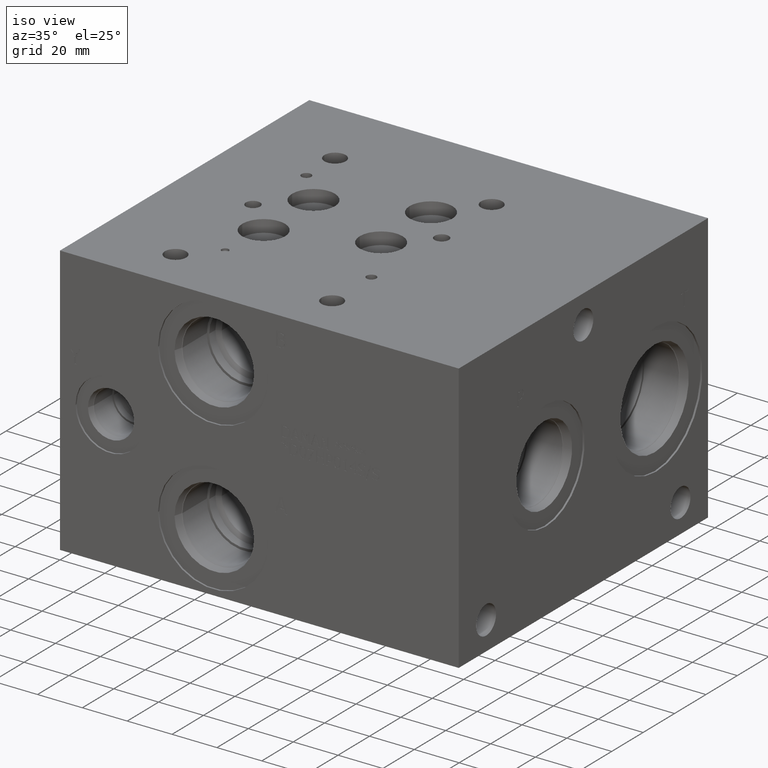
[diagram: clean part render]
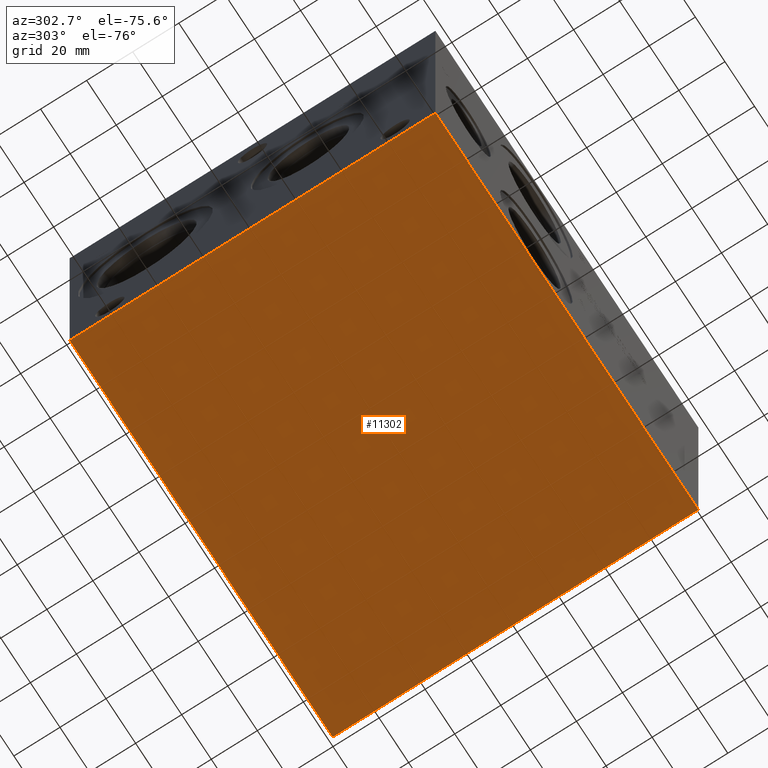
[diagram: tour spotlight — one face highlighted and labeled with its STEP entity id]
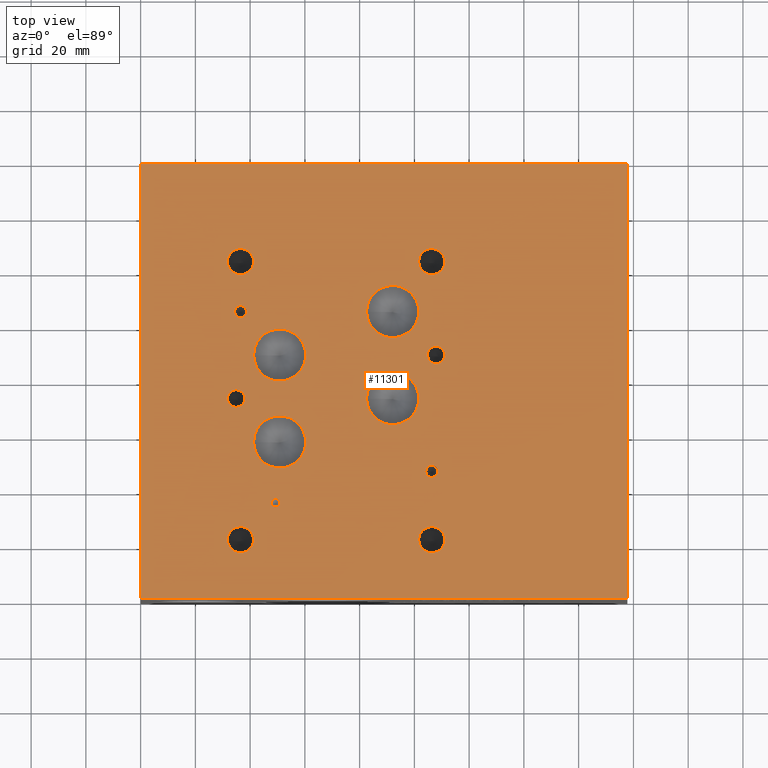
[diagram: tour spotlight — one face highlighted and labeled with its STEP entity id]
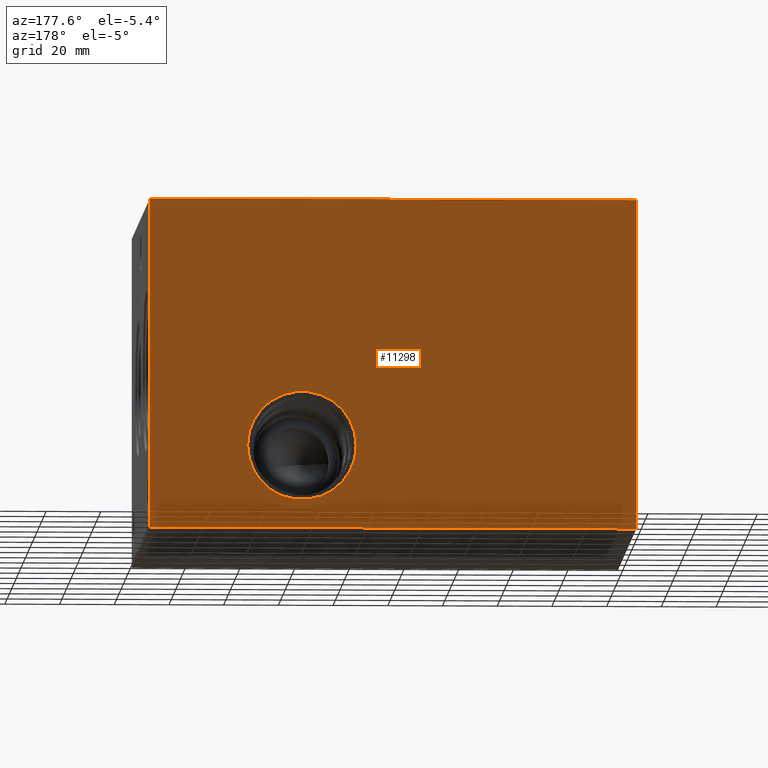
[diagram: tour spotlight — one face highlighted and labeled with its STEP entity id]
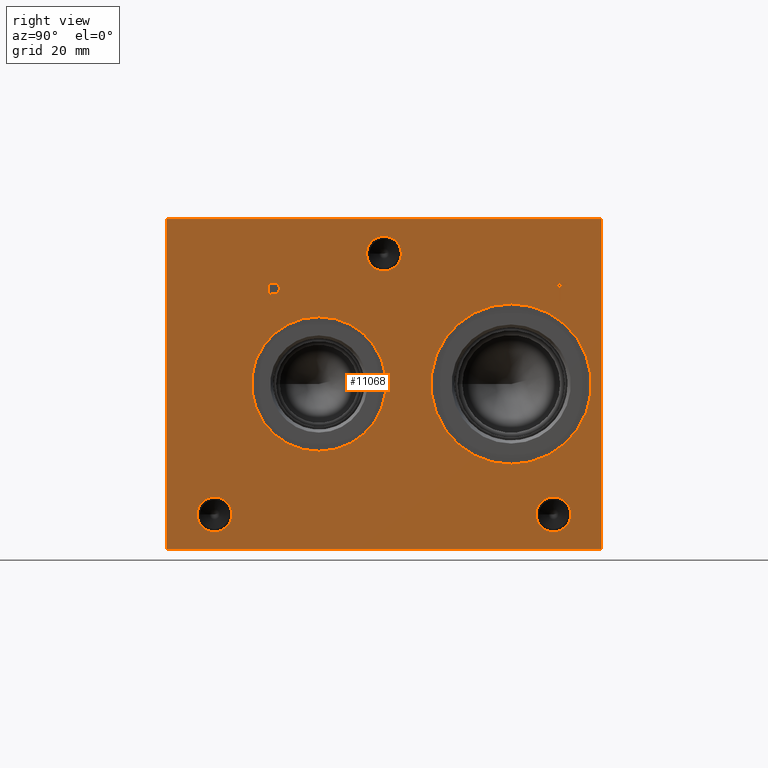
[diagram: tour spotlight — one face highlighted and labeled with its STEP entity id]
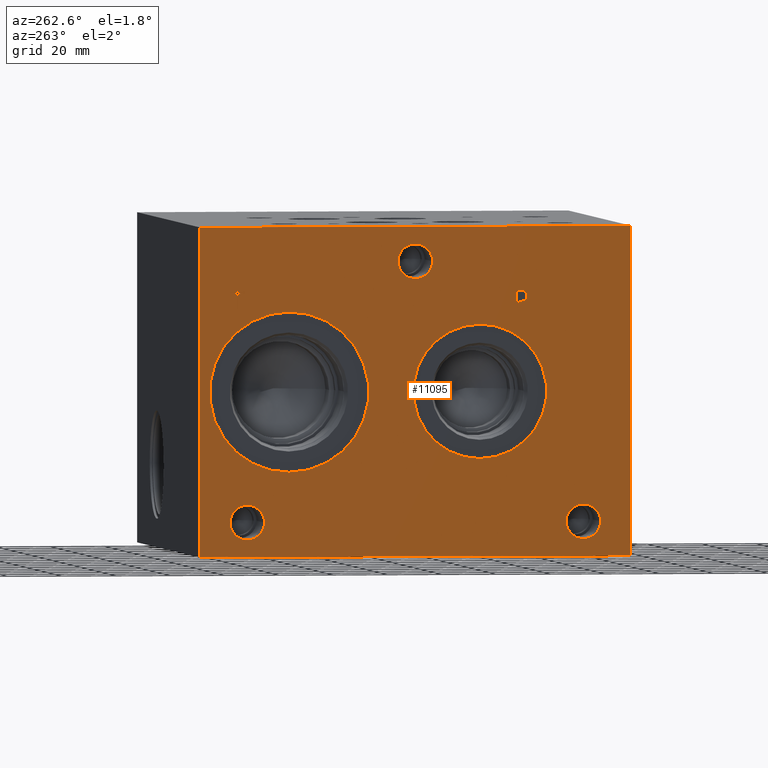
[diagram: tour spotlight — one face highlighted and labeled with its STEP entity id]
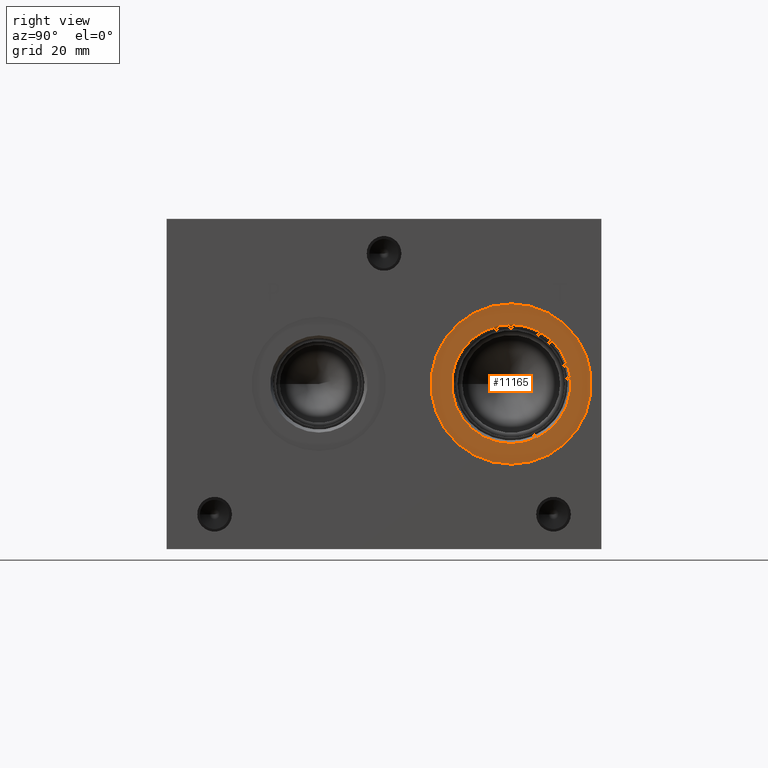
[diagram: tour spotlight — one face highlighted and labeled with its STEP entity id]
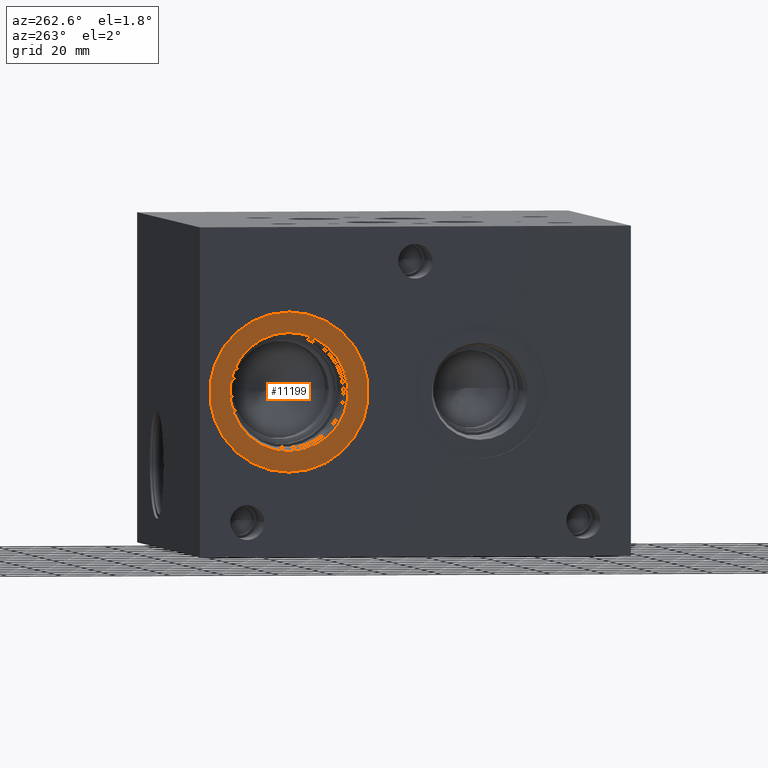
[diagram: tour spotlight — one face highlighted and labeled with its STEP entity id]
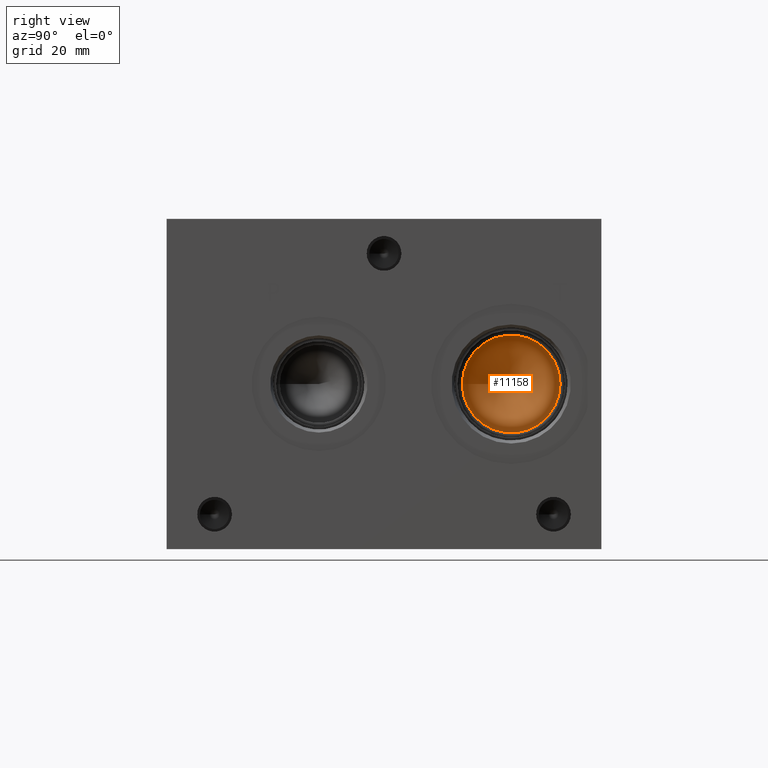
[diagram: tour spotlight — one face highlighted and labeled with its STEP entity id]
A machine part: a face-by-face anatomy tour. The part has 581 B-rep faces; the first image is the clean iso view, then the 8 largest visible faces are spotlighted one at a time (largest first), each with its STEP entity span.

Face 1 — auxiliary view, entity #11302. In plain terms, the highlighted planar face has unit normal (0, 0, 1).
Definition (entity closure, byte-faithful):
#1419=FACE_OUTER_BOUND('',#2097,.T.);
#2097=EDGE_LOOP('',(#9958,#9959,#9960,#9961));
#2432=LINE('',#16534,#3493);
#2890=LINE('',#17782,#3951);
#2949=LINE('',#18058,#4010);
#3157=LINE('',#19258,#4218);
#3493=VECTOR('',#12596,10.);
#3951=VECTOR('',#13382,10.);
#4010=VECTOR('',#13499,10.);
#4218=VECTOR('',#14599,10.);
#4540=VERTEX_POINT('',#16532);
#4541=VERTEX_POINT('',#16533);
#4887=VERTEX_POINT('',#17781);
#4947=VERTEX_POINT('',#18057);
#5774=EDGE_CURVE('',#4540,#4541,#2432,.T.);
#6276=EDGE_CURVE('',#4541,#4887,#2890,.T.);
#6361=EDGE_CURVE('',#4947,#4540,#2949,.T.);
#6848=EDGE_CURVE('',#4887,#4947,#3157,.T.);
#9958=ORIENTED_EDGE('',*,*,#5774,.F.);
#9959=ORIENTED_EDGE('',*,*,#6361,.F.);
#9960=ORIENTED_EDGE('',*,*,#6848,.F.);
#9961=ORIENTED_EDGE('',*,*,#6276,.F.);
#10309=PLANE('',#12059);
#11302=ADVANCED_FACE('',(#1419),#10309,.F.);
#12059=AXIS2_PLACEMENT_3D('',#19263,#14607,#14608);
#12596=DIRECTION('',(1.,0.,0.));
#13382=DIRECTION('',(0.,1.,0.));
#13499=DIRECTION('',(0.,-1.,0.));
#14599=DIRECTION('',(-1.,0.,0.));
#14607=DIRECTION('center_axis',(0.,0.,1.));
#14608=DIRECTION('ref_axis',(1.,0.,0.));
#16532=CARTESIAN_POINT('',(0.,0.,0.));
#16533=CARTESIAN_POINT('',(177.8,0.,0.));
#16534=CARTESIAN_POINT('',(0.,0.,0.));
#17781=CARTESIAN_POINT('',(177.8,158.75,0.));
#17782=CARTESIAN_POINT('',(177.8,0.,0.));
#18057=CARTESIAN_POINT('',(0.,158.75,0.));
#18058=CARTESIAN_POINT('',(0.,158.75,0.));
#19258=CARTESIAN_POINT('',(177.8,158.75,0.));
#19263=CARTESIAN_POINT('Origin',(88.9,79.375,0.));

Face 2 — top view, entity #11301. In plain terms, the highlighted planar face has unit normal (0, 0, 1).
Definition (entity closure, byte-faithful):
#341=CIRCLE('',#11950,1.5875);
#342=CIRCLE('',#11951,1.5875);
#345=CIRCLE('',#11956,9.525);
#346=CIRCLE('',#11957,9.525);
#349=CIRCLE('',#11962,9.525);
#350=CIRCLE('',#11963,9.525);
#353=CIRCLE('',#11968,9.525);
#354=CIRCLE('',#11969,9.525);
#357=CIRCLE('',#11974,9.525);
#358=CIRCLE('',#11975,9.525);
#361=CIRCLE('',#11980,2.1844);
#362=CIRCLE('',#11981,2.1844);
#365=CIRCLE('',#11986,2.1844);
#366=CIRCLE('',#11987,2.1844);
#372=CIRCLE('',#11996,3.175);
#373=CIRCLE('',#11997,3.175);
#379=CIRCLE('',#12007,3.175);
#380=CIRCLE('',#12008,3.175);
#386=CIRCLE('',#12018,4.7625);
#387=CIRCLE('',#12019,4.7625);
#393=CIRCLE('',#12029,4.7625);
#394=CIRCLE('',#12030,4.7625);
#400=CIRCLE('',#12040,4.7625);
#401=CIRCLE('',#12041,4.7625);
#407=CIRCLE('',#12051,4.7625);
#408=CIRCLE('',#12052,4.7625);
#493=FACE_BOUND('',#2084,.T.);
#494=FACE_BOUND('',#2085,.T.);
#495=FACE_BOUND('',#2086,.T.);
#496=FACE_BOUND('',#2087,.T.);
#497=FACE_BOUND('',#2088,.T.);
#498=FACE_BOUND('',#2089,.T.);
#499=FACE_BOUND('',#2090,.T.);
#500=FACE_BOUND('',#2091,.T.);
#501=FACE_BOUND('',#2092,.T.);
#502=FACE_BOUND('',#2093,.T.);
#503=FACE_BOUND('',#2094,.T.);
#504=FACE_BOUND('',#2095,.T.);
#505=FACE_BOUND('',#2096,.T.);
#1418=FACE_OUTER_BOUND('',#2083,.T.);
#2083=EDGE_LOOP('',(#9928,#9929,#9930,#9931));
#2084=EDGE_LOOP('',(#9932,#9933));
#2085=EDGE_LOOP('',(#9934,#9935));
#2086=EDGE_LOOP('',(#9936,#9937));
#2087=EDGE_LOOP('',(#9938,#9939));
#2088=EDGE_LOOP('',(#9940,#9941));
#2089=EDGE_LOOP('',(#9942,#9943));
#2090=EDGE_LOOP('',(#9944,#9945));
#2091=EDGE_LOOP('',(#9946,#9947));
#2092=EDGE_LOOP('',(#9948,#9949));
#2093=EDGE_LOOP('',(#9950,#9951));
#2094=EDGE_LOOP('',(#9952,#9953));
#2095=EDGE_LOOP('',(#9954,#9955));
#2096=EDGE_LOOP('',(#9956,#9957));
#2434=LINE('',#16538,#3495);
#2892=LINE('',#17785,#3953);
#2950=LINE('',#18060,#4011);
#3158=LINE('',#19259,#4219);
#3495=VECTOR('',#12598,10.);
#3953=VECTOR('',#13384,10.);
#4011=VECTOR('',#13500,10.);
#4219=VECTOR('',#14600,10.);
#4542=VERTEX_POINT('',#16535);
#4543=VERTEX_POINT('',#16537);
#4888=VERTEX_POINT('',#17783);
#4948=VERTEX_POINT('',#18059);
#5214=VERTEX_POINT('',#19041);
#5215=VERTEX_POINT('',#19042);
#5219=VERTEX_POINT('',#19054);
#5220=VERTEX_POINT('',#19055);
#5224=VERTEX_POINT('',#19067);
#5225=VERTEX_POINT('',#19068);
#5229=VERTEX_POINT('',#19080);
#5230=VERTEX_POINT('',#19081);
#5234=VERTEX_POINT('',#19093);
#5235=VERTEX_POINT('',#19094);
#5239=VERTEX_POINT('',#19106);
#5240=VERTEX_POINT('',#19107);
#5244=VERTEX_POINT('',#19119);
#5245=VERTEX_POINT('',#19120);
#5252=VERTEX_POINT('',#19139);
#5253=VERTEX_POINT('',#19140);
#5260=VERTEX_POINT('',#19161);
#5261=VERTEX_POINT('',#19162);
#5268=VERTEX_POINT('',#19183);
#5269=VERTEX_POINT('',#19184);
#5276=VERTEX_POINT('',#19205);
#5277=VERTEX_POINT('',#19206);
#5284=VERTEX_POINT('',#19227);
#5285=VERTEX_POINT('',#19228);
#5292=VERTEX_POINT('',#19249);
#5293=VERTEX_POINT('',#19250);
#5776=EDGE_CURVE('',#4543,#4542,#2434,.T.);
#6278=EDGE_CURVE('',#4542,#4888,#2892,.T.);
#6362=EDGE_CURVE('',#4948,#4543,#2950,.T.);
#6749=EDGE_CURVE('',#5214,#5215,#341,.T.);
#6750=EDGE_CURVE('',#5215,#5214,#342,.T.);
#6755=EDGE_CURVE('',#5219,#5220,#345,.T.);
#6756=EDGE_CURVE('',#5220,#5219,#346,.T.);
#6761=EDGE_CURVE('',#5224,#5225,#349,.T.);
#6762=EDGE_CURVE('',#5225,#5224,#350,.T.);
#6767=EDGE_CURVE('',#5229,#5230,#353,.T.);
#6768=EDGE_CURVE('',#5230,#5229,#354,.T.);
#6773=EDGE_CURVE('',#5234,#5235,#357,.T.);
#6774=EDGE_CURVE('',#5235,#5234,#358,.T.);
#6779=EDGE_CURVE('',#5239,#5240,#361,.T.);
#6780=EDGE_CURVE('',#5240,#5239,#362,.T.);
#6785=EDGE_CURVE('',#5244,#5245,#365,.T.);
#6786=EDGE_CURVE('',#5245,#5244,#366,.T.);
#6794=EDGE_CURVE('',#5252,#5253,#372,.T.);
#6795=EDGE_CURVE('',#5253,#5252,#373,.T.);
#6804=EDGE_CURVE('',#5260,#5261,#379,.T.);
#6805=EDGE_CURVE('',#5261,#5260,#380,.T.);
#6814=EDGE_CURVE('',#5268,#5269,#386,.T.);
#6815=EDGE_CURVE('',#5269,#5268,#387,.T.);
#6824=EDGE_CURVE('',#5276,#5277,#393,.T.);
#6825=EDGE_CURVE('',#5277,#5276,#394,.T.);
#6834=EDGE_CURVE('',#5284,#5285,#400,.T.);
#6835=EDGE_CURVE('',#5285,#5284,#401,.T.);
#6844=EDGE_CURVE('',#5292,#5293,#407,.T.);
#6845=EDGE_CURVE('',#5293,#5292,#408,.T.);
#6849=EDGE_CURVE('',#4888,#4948,#3158,.T.);
#9928=ORIENTED_EDGE('',*,*,#5776,.T.);
#9929=ORIENTED_EDGE('',*,*,#6278,.T.);
#9930=ORIENTED_EDGE('',*,*,#6849,.T.);
#9931=ORIENTED_EDGE('',*,*,#6362,.T.);
#9932=ORIENTED_EDGE('',*,*,#6749,.T.);
#9933=ORIENTED_EDGE('',*,*,#6750,.T.);
#9934=ORIENTED_EDGE('',*,*,#6755,.T.);
#9935=ORIENTED_EDGE('',*,*,#6756,.T.);
#9936=ORIENTED_EDGE('',*,*,#6761,.T.);
#9937=ORIENTED_EDGE('',*,*,#6762,.T.);
#9938=ORIENTED_EDGE('',*,*,#6767,.T.);
#9939=ORIENTED_EDGE('',*,*,#6768,.T.);
#9940=ORIENTED_EDGE('',*,*,#6773,.T.);
#9941=ORIENTED_EDGE('',*,*,#6774,.T.);
#9942=ORIENTED_EDGE('',*,*,#6779,.T.);
#9943=ORIENTED_EDGE('',*,*,#6780,.T.);
#9944=ORIENTED_EDGE('',*,*,#6785,.T.);
#9945=ORIENTED_EDGE('',*,*,#6786,.T.);
#9946=ORIENTED_EDGE('',*,*,#6794,.T.);
#9947=ORIENTED_EDGE('',*,*,#6795,.T.);
#9948=ORIENTED_EDGE('',*,*,#6804,.T.);
#9949=ORIENTED_EDGE('',*,*,#6805,.T.);
#9950=ORIENTED_EDGE('',*,*,#6814,.T.);
#9951=ORIENTED_EDGE('',*,*,#6815,.T.);
#9952=ORIENTED_EDGE('',*,*,#6824,.T.);
#9953=ORIENTED_EDGE('',*,*,#6825,.T.);
#9954=ORIENTED_EDGE('',*,*,#6834,.T.);
#9955=ORIENTED_EDGE('',*,*,#6835,.T.);
#9956=ORIENTED_EDGE('',*,*,#6844,.T.);
#9957=ORIENTED_EDGE('',*,*,#6845,.T.);
#10308=PLANE('',#12058);
#11301=ADVANCED_FACE('',(#1418,#493,#494,#495,#496,#497,#498,#499,#500,
#501,#502,#503,#504,#505),#10308,.T.);
#11950=AXIS2_PLACEMENT_3D('',#19043,#14356,#14357);
#11951=AXIS2_PLACEMENT_3D('',#19044,#14358,#14359);
#11956=AXIS2_PLACEMENT_3D('',#19056,#14370,#14371);
#11957=AXIS2_PLACEMENT_3D('',#19057,#14372,#14373);
#11962=AXIS2_PLACEMENT_3D('',#19069,#14384,#14385);
#11963=AXIS2_PLACEMENT_3D('',#19070,#14386,#14387);
#11968=AXIS2_PLACEMENT_3D('',#19082,#14398,#14399);
#11969=AXIS2_PLACEMENT_3D('',#19083,#14400,#14401);
#11974=AXIS2_PLACEMENT_3D('',#19095,#14412,#14413);
#11975=AXIS2_PLACEMENT_3D('',#19096,#14414,#14415);
#11980=AXIS2_PLACEMENT_3D('',#19108,#14426,#14427);
#11981=AXIS2_PLACEMENT_3D('',#19109,#14428,#14429);
#11986=AXIS2_PLACEMENT_3D('',#19121,#14440,#14441);
#11987=AXIS2_PLACEMENT_3D('',#19122,#14442,#14443);
#11996=AXIS2_PLACEMENT_3D('',#19141,#14462,#14463);
#11997=AXIS2_PLACEMENT_3D('',#19142,#14464,#14465);
#12007=AXIS2_PLACEMENT_3D('',#19163,#14487,#14488);
#12008=AXIS2_PLACEMENT_3D('',#19164,#14489,#14490);
#12018=AXIS2_PLACEMENT_3D('',#19185,#14512,#14513);
#12019=AXIS2_PLACEMENT_3D('',#19186,#14514,#14515);
#12029=AXIS2_PLACEMENT_3D('',#19207,#14537,#14538);
#12030=AXIS2_PLACEMENT_3D('',#19208,#14539,#14540);
#12040=AXIS2_PLACEMENT_3D('',#19229,#14562,#14563);
#12041=AXIS2_PLACEMENT_3D('',#19230,#14564,#14565);
#12051=AXIS2_PLACEMENT_3D('',#19251,#14587,#14588);
#12052=AXIS2_PLACEMENT_3D('',#19252,#14589,#14590);
#12058=AXIS2_PLACEMENT_3D('',#19262,#14605,#14606);
#12598=DIRECTION('',(1.,0.,0.));
#13384=DIRECTION('',(0.,1.,0.));
#13500=DIRECTION('',(0.,-1.,0.));
#14356=DIRECTION('center_axis',(0.,0.,-1.));
#14357=DIRECTION('ref_axis',(1.,0.,0.));
#14358=DIRECTION('center_axis',(0.,0.,-1.));
#14359=DIRECTION('ref_axis',(1.,0.,0.));
#14370=DIRECTION('center_axis',(0.,0.,-1.));
#14371=DIRECTION('ref_axis',(1.,0.,0.));
#14372=DIRECTION('center_axis',(0.,0.,-1.));
#14373=DIRECTION('ref_axis',(1.,0.,0.));
#14384=DIRECTION('center_axis',(0.,0.,-1.));
#14385=DIRECTION('ref_axis',(1.,0.,0.));
#14386=DIRECTION('center_axis',(0.,0.,-1.));
#14387=DIRECTION('ref_axis',(1.,0.,0.));
#14398=DIRECTION('center_axis',(0.,0.,-1.));
#14399=DIRECTION('ref_axis',(1.,0.,0.));
#14400=DIRECTION('center_axis',(0.,0.,-1.));
#14401=DIRECTION('ref_axis',(1.,0.,0.));
#14412=DIRECTION('center_axis',(0.,0.,-1.));
#14413=DIRECTION('ref_axis',(1.,0.,0.));
#14414=DIRECTION('center_axis',(0.,0.,-1.));
#14415=DIRECTION('ref_axis',(1.,0.,0.));
#14426=DIRECTION('center_axis',(0.,0.,-1.));
#14427=DIRECTION('ref_axis',(1.,0.,0.));
#14428=DIRECTION('center_axis',(0.,0.,-1.));
#14429=DIRECTION('ref_axis',(1.,0.,0.));
#14440=DIRECTION('center_axis',(0.,0.,-1.));
#14441=DIRECTION('ref_axis',(1.,0.,0.));
#14442=DIRECTION('center_axis',(0.,0.,-1.));
#14443=DIRECTION('ref_axis',(1.,0.,0.));
#14462=DIRECTION('center_axis',(0.,0.,-1.));
#14463=DIRECTION('ref_axis',(1.,0.,0.));
#14464=DIRECTION('center_axis',(0.,0.,-1.));
#14465=DIRECTION('ref_axis',(1.,0.,0.));
#14487=DIRECTION('center_axis',(0.,0.,-1.));
#14488=DIRECTION('ref_axis',(1.,0.,0.));
#14489=DIRECTION('center_axis',(0.,0.,-1.));
#14490=DIRECTION('ref_axis',(1.,0.,0.));
#14512=DIRECTION('center_axis',(0.,0.,-1.));
#14513=DIRECTION('ref_axis',(1.,0.,0.));
#14514=DIRECTION('center_axis',(0.,0.,-1.));
#14515=DIRECTION('ref_axis',(1.,0.,0.));
#14537=DIRECTION('center_axis',(0.,0.,-1.));
#14538=DIRECTION('ref_axis',(1.,0.,0.));
#14539=DIRECTION('center_axis',(0.,0.,-1.));
#14540=DIRECTION('ref_axis',(1.,0.,0.));
#14562=DIRECTION('center_axis',(0.,0.,-1.));
#14563=DIRECTION('ref_axis',(1.,0.,0.));
#14564=DIRECTION('center_axis',(0.,0.,-1.));
#14565=DIRECTION('ref_axis',(1.,0.,0.));
#14587=DIRECTION('center_axis',(0.,0.,-1.));
#14588=DIRECTION('ref_axis',(1.,0.,0.));
#14589=DIRECTION('center_axis',(0.,0.,-1.));
#14590=DIRECTION('ref_axis',(1.,0.,0.));
#14600=DIRECTION('',(-1.,0.,0.));
#14605=DIRECTION('center_axis',(0.,0.,1.));
#14606=DIRECTION('ref_axis',(1.,0.,0.));
#16535=CARTESIAN_POINT('',(177.8,0.,120.65));
#16537=CARTESIAN_POINT('',(0.,0.,120.65));
#16538=CARTESIAN_POINT('',(0.,0.,120.65));
#17783=CARTESIAN_POINT('',(177.8,158.75,120.65));
#17785=CARTESIAN_POINT('',(177.8,0.,120.65));
#18059=CARTESIAN_POINT('',(0.,158.75,120.65));
#18060=CARTESIAN_POINT('',(0.,158.75,120.65));
#19041=CARTESIAN_POINT('',(50.7873,34.925,120.65));
#19042=CARTESIAN_POINT('',(47.6123,34.925,120.65));
#19043=CARTESIAN_POINT('Origin',(49.1998,34.925,120.65));
#19044=CARTESIAN_POINT('Origin',(49.1998,34.925,120.65));
#19054=CARTESIAN_POINT('',(60.325,88.9,120.65));
#19055=CARTESIAN_POINT('',(41.275,88.9,120.65));
#19056=CARTESIAN_POINT('Origin',(50.8,88.9,120.65));
#19057=CARTESIAN_POINT('Origin',(50.8,88.9,120.65));
#19067=CARTESIAN_POINT('',(101.6,73.025,120.65));
#19068=CARTESIAN_POINT('',(82.55,73.025,120.65));
#19069=CARTESIAN_POINT('Origin',(92.075,73.025,120.65));
#19070=CARTESIAN_POINT('Origin',(92.075,73.025,120.65));
#19080=CARTESIAN_POINT('',(101.6,104.775,120.65));
#19081=CARTESIAN_POINT('',(82.55,104.775,120.65));
#19082=CARTESIAN_POINT('Origin',(92.075,104.775,120.65));
#19083=CARTESIAN_POINT('Origin',(92.075,104.775,120.65));
#19093=CARTESIAN_POINT('',(60.325,57.15,120.65));
#19094=CARTESIAN_POINT('',(41.275,57.15,120.65));
#19095=CARTESIAN_POINT('Origin',(50.8,57.15,120.65));
#19096=CARTESIAN_POINT('Origin',(50.8,57.15,120.65));
#19106=CARTESIAN_POINT('',(38.6842,104.775,120.65));
#19107=CARTESIAN_POINT('',(34.3154,104.775,120.65));
#19108=CARTESIAN_POINT('Origin',(36.4998,104.775,120.65));
#19109=CARTESIAN_POINT('Origin',(36.4998,104.775,120.65));
#19119=CARTESIAN_POINT('',(108.5342,46.4312,120.65));
#19120=CARTESIAN_POINT('',(104.1654,46.4312,120.65));
#19121=CARTESIAN_POINT('Origin',(106.3498,46.4312,120.65));
#19122=CARTESIAN_POINT('Origin',(106.3498,46.4312,120.65));
#19139=CARTESIAN_POINT('',(38.1,73.025,120.65));
#19140=CARTESIAN_POINT('',(31.75,73.025,120.65));
#19141=CARTESIAN_POINT('Origin',(34.925,73.025,120.65));
#19142=CARTESIAN_POINT('Origin',(34.925,73.025,120.65));
#19161=CARTESIAN_POINT('',(111.125,88.9,120.65));
#19162=CARTESIAN_POINT('',(104.775,88.9,120.65));
#19163=CARTESIAN_POINT('Origin',(107.95,88.9,120.65));
#19164=CARTESIAN_POINT('Origin',(107.95,88.9,120.65));
#19183=CARTESIAN_POINT('',(111.1123,21.4376,120.65));
#19184=CARTESIAN_POINT('',(101.5873,21.4376,120.65));
#19185=CARTESIAN_POINT('Origin',(106.3498,21.4376,120.65));
#19186=CARTESIAN_POINT('Origin',(106.3498,21.4376,120.65));
#19205=CARTESIAN_POINT('',(41.2623,123.0376,120.65));
#19206=CARTESIAN_POINT('',(31.7373,123.0376,120.65));
#19207=CARTESIAN_POINT('Origin',(36.4998,123.0376,120.65));
#19208=CARTESIAN_POINT('Origin',(36.4998,123.0376,120.65));
#19227=CARTESIAN_POINT('',(111.1123,123.0376,120.65));
#19228=CARTESIAN_POINT('',(101.5873,123.0376,120.65));
#19229=CARTESIAN_POINT('Origin',(106.3498,123.0376,120.65));
#19230=CARTESIAN_POINT('Origin',(106.3498,123.0376,120.65));
#19249=CARTESIAN_POINT('',(41.2623,21.4376,120.65));
#19250=CARTESIAN_POINT('',(31.7373,21.4376,120.65));
#19251=CARTESIAN_POINT('Origin',(36.4998,21.4376,120.65));
#19252=CARTESIAN_POINT('Origin',(36.4998,21.4376,120.65));
#19259=CARTESIAN_POINT('',(177.8,158.75,120.65));
#19262=CARTESIAN_POINT('Origin',(88.9,79.375,120.65));

Face 3 — auxiliary view, entity #11298. In plain terms, the highlighted planar face has unit normal (0, 1, 0).
Definition (entity closure, byte-faithful):
#162=CIRCLE('',#11657,19.8374);
#163=CIRCLE('',#11658,19.8374);
#492=FACE_BOUND('',#2080,.T.);
#1415=FACE_OUTER_BOUND('',#2079,.T.);
#2079=EDGE_LOOP('',(#9908,#9909,#9910,#9911));
#2080=EDGE_LOOP('',(#9912,#9913));
#2891=LINE('',#17784,#3952);
#2951=LINE('',#18061,#4012);
#3157=LINE('',#19258,#4218);
#3158=LINE('',#19259,#4219);
#3952=VECTOR('',#13383,10.);
#4012=VECTOR('',#13501,10.);
#4218=VECTOR('',#14599,10.);
#4219=VECTOR('',#14600,10.);
#4887=VERTEX_POINT('',#17781);
#4888=VERTEX_POINT('',#17783);
#4947=VERTEX_POINT('',#18057);
#4948=VERTEX_POINT('',#18059);
#5020=VERTEX_POINT('',#18463);
#5021=VERTEX_POINT('',#18464);
#6277=EDGE_CURVE('',#4887,#4888,#2891,.T.);
#6363=EDGE_CURVE('',#4947,#4948,#2951,.T.);
#6479=EDGE_CURVE('',#5020,#5021,#162,.T.);
#6480=EDGE_CURVE('',#5021,#5020,#163,.T.);
#6848=EDGE_CURVE('',#4887,#4947,#3157,.T.);
#6849=EDGE_CURVE('',#4888,#4948,#3158,.T.);
#9908=ORIENTED_EDGE('',*,*,#6848,.T.);
#9909=ORIENTED_EDGE('',*,*,#6363,.T.);
#9910=ORIENTED_EDGE('',*,*,#6849,.F.);
#9911=ORIENTED_EDGE('',*,*,#6277,.F.);
#9912=ORIENTED_EDGE('',*,*,#6479,.T.);
#9913=ORIENTED_EDGE('',*,*,#6480,.T.);
#10305=PLANE('',#12055);
#11298=ADVANCED_FACE('',(#1415,#492),#10305,.T.);
#11657=AXIS2_PLACEMENT_3D('',#18465,#13679,#13680);
#11658=AXIS2_PLACEMENT_3D('',#18466,#13681,#13682);
#12055=AXIS2_PLACEMENT_3D('',#19257,#14597,#14598);
#13383=DIRECTION('',(0.,0.,1.));
#13501=DIRECTION('',(0.,0.,1.));
#13679=DIRECTION('center_axis',(0.,-1.,0.));
#13680=DIRECTION('ref_axis',(1.,0.,0.));
#13681=DIRECTION('center_axis',(0.,-1.,0.));
#13682=DIRECTION('ref_axis',(1.,0.,0.));
#14597=DIRECTION('center_axis',(0.,1.,0.));
#14598=DIRECTION('ref_axis',(-1.,0.,0.));
#14599=DIRECTION('',(-1.,0.,0.));
#14600=DIRECTION('',(-1.,0.,0.));
#17781=CARTESIAN_POINT('',(177.8,158.75,0.));
#17783=CARTESIAN_POINT('',(177.8,158.75,120.65));
#17784=CARTESIAN_POINT('',(177.8,158.75,0.));
#18057=CARTESIAN_POINT('',(0.,158.75,0.));
#18059=CARTESIAN_POINT('',(0.,158.75,120.65));
#18061=CARTESIAN_POINT('',(0.,158.75,0.));
#18463=CARTESIAN_POINT('',(142.0622,158.75,30.1752));
#18464=CARTESIAN_POINT('',(102.3874,158.75,30.1752));
#18465=CARTESIAN_POINT('Origin',(122.2248,158.75,30.1752));
#18466=CARTESIAN_POINT('Origin',(122.2248,158.75,30.1752));
#19257=CARTESIAN_POINT('Origin',(177.8,158.75,0.));
#19258=CARTESIAN_POINT('',(177.8,158.75,0.));
#19259=CARTESIAN_POINT('',(177.8,158.75,120.65));

Face 4 — right view, entity #11068. In plain terms, the highlighted planar face has unit normal (1, 0, 0).
Definition (entity closure, byte-faithful):
#142=CIRCLE('',#11581,6.35);
#143=CIRCLE('',#11582,6.35);
#144=CIRCLE('',#11583,6.35);
#145=CIRCLE('',#11584,6.35);
#146=CIRCLE('',#11585,6.35);
#147=CIRCLE('',#11586,6.35);
#148=CIRCLE('',#11587,24.5618);
#149=CIRCLE('',#11588,24.5618);
#150=CIRCLE('',#11589,29.2862);
#151=CIRCLE('',#11590,29.2862);
#445=FACE_BOUND('',#1803,.T.);
#446=FACE_BOUND('',#1804,.T.);
#447=FACE_BOUND('',#1805,.T.);
#448=FACE_BOUND('',#1806,.T.);
#449=FACE_BOUND('',#1807,.T.);
#450=FACE_BOUND('',#1808,.T.);
#451=FACE_BOUND('',#1809,.T.);
#682=B_SPLINE_CURVE_WITH_KNOTS('',2,(#17683,#17684,#17685,#17686),
 .UNSPECIFIED.,.F.,.F.,(3,1,3),(0.,1.,2.),.UNSPECIFIED.);
#684=B_SPLINE_CURVE_WITH_KNOTS('',2,(#17704,#17705,#17706,#17707),
 .UNSPECIFIED.,.F.,.F.,(3,1,3),(0.,1.,2.),.UNSPECIFIED.);
#686=B_SPLINE_CURVE_WITH_KNOTS('',2,(#17753,#17754,#17755,#17756),
 .UNSPECIFIED.,.F.,.F.,(3,1,3),(0.,1.,2.),.UNSPECIFIED.);
#688=B_SPLINE_CURVE_WITH_KNOTS('',2,(#17771,#17772,#17773,#17774),
 .UNSPECIFIED.,.F.,.F.,(3,1,3),(0.,1.,2.),.UNSPECIFIED.);
#1185=FACE_OUTER_BOUND('',#1802,.T.);
#1802=EDGE_LOOP('',(#8750,#8751,#8752,#8753));
#1803=EDGE_LOOP('',(#8754,#8755,#8756,#8757,#8758,#8759,#8760,#8761));
#1804=EDGE_LOOP('',(#8762,#8763));
#1805=EDGE_LOOP('',(#8764,#8765));
#1806=EDGE_LOOP('',(#8766,#8767));
#1807=EDGE_LOOP('',(#8768,#8769));
#1808=EDGE_LOOP('',(#8770,#8771));
#1809=EDGE_LOOP('',(#8772,#8773,#8774,#8775,#8776,#8777,#8778,#8779,#8780));
#2433=LINE('',#16536,#3494);
#2834=LINE('',#17533,#3895);
#2838=LINE('',#17541,#3899);
#2841=LINE('',#17547,#3902);
#2844=LINE('',#17553,#3905);
#2847=LINE('',#17559,#3908);
#2850=LINE('',#17565,#3911);
#2853=LINE('',#17571,#3914);
#2856=LINE('',#17576,#3917);
#2874=LINE('',#17716,#3935);
#2877=LINE('',#17722,#3938);
#2880=LINE('',#17728,#3941);
#2883=LINE('',#17734,#3944);
#2886=LINE('',#17740,#3947);
#2890=LINE('',#17782,#3951);
#2891=LINE('',#17784,#3952);
#2892=LINE('',#17785,#3953);
#3494=VECTOR('',#12597,10.);
#3895=VECTOR('',#13290,10.);
#3899=VECTOR('',#13296,10.);
#3902=VECTOR('',#13301,10.);
#3905=VECTOR('',#13306,10.);
#3908=VECTOR('',#13311,10.);
#3911=VECTOR('',#13316,10.);
#3914=VECTOR('',#13321,10.);
#3917=VECTOR('',#13326,10.);
#3935=VECTOR('',#13354,10.);
#3938=VECTOR('',#13359,10.);
#3941=VECTOR('',#13364,10.);
#3944=VECTOR('',#13369,10.);
#3947=VECTOR('',#13374,10.);
#3951=VECTOR('',#13382,10.);
#3952=VECTOR('',#13383,10.);
#3953=VECTOR('',#13384,10.);
#4541=VERTEX_POINT('',#16533);
#4542=VERTEX_POINT('',#16535);
#4839=VERTEX_POINT('',#17531);
#4840=VERTEX_POINT('',#17532);
#4843=VERTEX_POINT('',#17540);
#4845=VERTEX_POINT('',#17546);
#4847=VERTEX_POINT('',#17552);
#4849=VERTEX_POINT('',#17558);
#4851=VERTEX_POINT('',#17564);
#4853=VERTEX_POINT('',#17570);
#4869=VERTEX_POINT('',#17681);
#4870=VERTEX_POINT('',#17682);
#4873=VERTEX_POINT('',#17703);
#4875=VERTEX_POINT('',#17715);
#4877=VERTEX_POINT('',#17721);
#4879=VERTEX_POINT('',#17727);
#4881=VERTEX_POINT('',#17733);
#4883=VERTEX_POINT('',#17739);
#4885=VERTEX_POINT('',#17752);
#4887=VERTEX_POINT('',#17781);
#4888=VERTEX_POINT('',#17783);
#4889=VERTEX_POINT('',#17786);
#4890=VERTEX_POINT('',#17787);
#4891=VERTEX_POINT('',#17790);
#4892=VERTEX_POINT('',#17791);
#4893=VERTEX_POINT('',#17794);
#4894=VERTEX_POINT('',#17795);
#4895=VERTEX_POINT('',#17798);
#4896=VERTEX_POINT('',#17799);
#4897=VERTEX_POINT('',#17802);
#4898=VERTEX_POINT('',#17803);
#5775=EDGE_CURVE('',#4541,#4542,#2433,.T.);
#6204=EDGE_CURVE('',#4839,#4840,#2834,.T.);
#6208=EDGE_CURVE('',#4843,#4839,#2838,.T.);
#6211=EDGE_CURVE('',#4845,#4843,#2841,.T.);
#6214=EDGE_CURVE('',#4847,#4845,#2844,.T.);
#6217=EDGE_CURVE('',#4849,#4847,#2847,.T.);
#6220=EDGE_CURVE('',#4851,#4849,#2850,.T.);
#6223=EDGE_CURVE('',#4853,#4851,#2853,.T.);
#6226=EDGE_CURVE('',#4840,#4853,#2856,.T.);
#6249=EDGE_CURVE('',#4869,#4870,#682,.T.);
#6253=EDGE_CURVE('',#4873,#4869,#684,.T.);
#6256=EDGE_CURVE('',#4875,#4873,#2874,.T.);
#6259=EDGE_CURVE('',#4877,#4875,#2877,.T.);
#6262=EDGE_CURVE('',#4879,#4877,#2880,.T.);
#6265=EDGE_CURVE('',#4881,#4879,#2883,.T.);
#6268=EDGE_CURVE('',#4883,#4881,#2886,.T.);
#6271=EDGE_CURVE('',#4885,#4883,#686,.T.);
#6274=EDGE_CURVE('',#4870,#4885,#688,.T.);
#6276=EDGE_CURVE('',#4541,#4887,#2890,.T.);
#6277=EDGE_CURVE('',#4887,#4888,#2891,.T.);
#6278=EDGE_CURVE('',#4542,#4888,#2892,.T.);
#6279=EDGE_CURVE('',#4889,#4890,#142,.T.);
#6280=EDGE_CURVE('',#4890,#4889,#143,.T.);
#6281=EDGE_CURVE('',#4891,#4892,#144,.T.);
#6282=EDGE_CURVE('',#4892,#4891,#145,.T.);
#6283=EDGE_CURVE('',#4893,#4894,#146,.T.);
#6284=EDGE_CURVE('',#4894,#4893,#147,.T.);
#6285=EDGE_CURVE('',#4895,#4896,#148,.T.);
#6286=EDGE_CURVE('',#4896,#4895,#149,.T.);
#6287=EDGE_CURVE('',#4897,#4898,#150,.T.);
#6288=EDGE_CURVE('',#4898,#4897,#151,.T.);
#8750=ORIENTED_EDGE('',*,*,#6276,.T.);
#8751=ORIENTED_EDGE('',*,*,#6277,.T.);
#8752=ORIENTED_EDGE('',*,*,#6278,.F.);
#8753=ORIENTED_EDGE('',*,*,#5775,.F.);
#8754=ORIENTED_EDGE('',*,*,#6204,.T.);
#8755=ORIENTED_EDGE('',*,*,#6226,.T.);
#8756=ORIENTED_EDGE('',*,*,#6223,.T.);
#8757=ORIENTED_EDGE('',*,*,#6220,.T.);
#8758=ORIENTED_EDGE('',*,*,#6217,.T.);
#8759=ORIENTED_EDGE('',*,*,#6214,.T.);
#8760=ORIENTED_EDGE('',*,*,#6211,.T.);
#8761=ORIENTED_EDGE('',*,*,#6208,.T.);
#8762=ORIENTED_EDGE('',*,*,#6279,.T.);
#8763=ORIENTED_EDGE('',*,*,#6280,.T.);
#8764=ORIENTED_EDGE('',*,*,#6281,.T.);
#8765=ORIENTED_EDGE('',*,*,#6282,.T.);
#8766=ORIENTED_EDGE('',*,*,#6283,.T.);
#8767=ORIENTED_EDGE('',*,*,#6284,.T.);
#8768=ORIENTED_EDGE('',*,*,#6285,.T.);
#8769=ORIENTED_EDGE('',*,*,#6286,.T.);
#8770=ORIENTED_EDGE('',*,*,#6287,.T.);
#8771=ORIENTED_EDGE('',*,*,#6288,.T.);
#8772=ORIENTED_EDGE('',*,*,#6249,.T.);
#8773=ORIENTED_EDGE('',*,*,#6274,.T.);
#8774=ORIENTED_EDGE('',*,*,#6271,.T.);
#8775=ORIENTED_EDGE('',*,*,#6268,.T.);
#8776=ORIENTED_EDGE('',*,*,#6265,.T.);
#8777=ORIENTED_EDGE('',*,*,#6262,.T.);
#8778=ORIENTED_EDGE('',*,*,#6259,.T.);
#8779=ORIENTED_EDGE('',*,*,#6256,.T.);
#8780=ORIENTED_EDGE('',*,*,#6253,.T.);
#10219=PLANE('',#11580);
#11068=ADVANCED_FACE('',(#1185,#445,#446,#447,#448,#449,#450,#451),#10219,
 .T.);
#11580=AXIS2_PLACEMENT_3D('',#17780,#13380,#13381);
#11581=AXIS2_PLACEMENT_3D('',#17788,#13385,#13386);
#11582=AXIS2_PLACEMENT_3D('',#17789,#13387,#13388);
#11583=AXIS2_PLACEMENT_3D('',#17792,#13389,#13390);
#11584=AXIS2_PLACEMENT_3D('',#17793,#13391,#13392);
#11585=AXIS2_PLACEMENT_3D('',#17796,#13393,#13394);
#11586=AXIS2_PLACEMENT_3D('',#17797,#13395,#13396);
#11587=AXIS2_PLACEMENT_3D('',#17800,#13397,#13398);
#11588=AXIS2_PLACEMENT_3D('',#17801,#13399,#13400);
#11589=AXIS2_PLACEMENT_3D('',#17804,#13401,#13402);
#11590=AXIS2_PLACEMENT_3D('',#17805,#13403,#13404);
#12597=DIRECTION('',(0.,0.,1.));
#13290=DIRECTION('',(0.,-1.,0.));
#13296=DIRECTION('',(0.,0.,-1.));
#13301=DIRECTION('',(0.,-1.,0.));
#13306=DIRECTION('',(0.,0.,-1.));
#13311=DIRECTION('',(0.,1.,0.));
#13316=DIRECTION('',(0.,0.,1.));
#13321=DIRECTION('',(0.,-1.,0.));
#13326=DIRECTION('',(0.,0.,1.));
#13354=DIRECTION('',(0.,1.,0.));
#13359=DIRECTION('',(0.,0.,1.));
#13364=DIRECTION('',(0.,-1.,0.));
#13369=DIRECTION('',(0.,0.,-1.));
#13374=DIRECTION('',(0.,-1.,0.));
#13380=DIRECTION('center_axis',(1.,0.,0.));
#13381=DIRECTION('ref_axis',(0.,1.,0.));
#13382=DIRECTION('',(0.,1.,0.));
#13383=DIRECTION('',(0.,0.,1.));
#13384=DIRECTION('',(0.,1.,0.));
#13385=DIRECTION('center_axis',(-1.,0.,0.));
#13386=DIRECTION('ref_axis',(0.,1.,0.));
#13387=DIRECTION('center_axis',(-1.,0.,0.));
#13388=DIRECTION('ref_axis',(0.,1.,0.));
#13389=DIRECTION('center_axis',(-1.,0.,0.));
#13390=DIRECTION('ref_axis',(0.,1.,0.));
#13391=DIRECTION('center_axis',(-1.,0.,0.));
#13392=DIRECTION('ref_axis',(0.,1.,0.));
#13393=DIRECTION('center_axis',(-1.,0.,0.));
#13394=DIRECTION('ref_axis',(0.,1.,0.));
#13395=DIRECTION('center_axis',(-1.,0.,0.));
#13396=DIRECTION('ref_axis',(0.,1.,0.));
#13397=DIRECTION('center_axis',(-1.,0.,0.));
#13398=DIRECTION('ref_axis',(0.,0.,-1.));
#13399=DIRECTION('center_axis',(-1.,0.,0.));
#13400=DIRECTION('ref_axis',(0.,0.,-1.));
#13401=DIRECTION('center_axis',(-1.,0.,0.));
#13402=DIRECTION('ref_axis',(0.,0.,-1.));
#13403=DIRECTION('center_axis',(-1.,0.,0.));
#13404=DIRECTION('ref_axis',(0.,0.,-1.));
#16533=CARTESIAN_POINT('',(177.8,0.,0.));
#16535=CARTESIAN_POINT('',(177.8,0.,120.65));
#16536=CARTESIAN_POINT('',(177.8,0.,0.));
#17531=CARTESIAN_POINT('',(177.8,144.040765271453,90.805));
#17532=CARTESIAN_POINT('',(177.8,143.196843079913,90.805));
#17533=CARTESIAN_POINT('',(177.8,72.0203826357265,90.805));
#17540=CARTESIAN_POINT('',(177.8,144.040765271453,96.4037033194816));
#17541=CARTESIAN_POINT('',(177.8,144.040765271453,48.2018516597408));
#17546=CARTESIAN_POINT('',(177.8,146.171154218388,96.4037033194816));
#17547=CARTESIAN_POINT('',(177.8,73.085577109194,96.4037033194816));
#17552=CARTESIAN_POINT('',(177.8,146.171154218388,97.1549999046326));
#17553=CARTESIAN_POINT('',(177.8,146.171154218388,48.5774999523163));
#17558=CARTESIAN_POINT('',(177.8,141.066454132978,97.1549999046326));
#17559=CARTESIAN_POINT('',(177.8,70.5332270664892,97.1549999046326));
#17564=CARTESIAN_POINT('',(177.8,141.066454132978,96.4037033194816));
#17565=CARTESIAN_POINT('',(177.8,141.066454132978,48.2018516597408));
#17570=CARTESIAN_POINT('',(177.8,143.196843079913,96.4037033194816));
#17571=CARTESIAN_POINT('',(177.8,71.5984215399567,96.4037033194816));
#17576=CARTESIAN_POINT('',(177.8,143.196843079913,45.4025));
#17681=CARTESIAN_POINT('',(177.8,40.4257672023594,96.7587681439707));
#17682=CARTESIAN_POINT('',(177.8,41.182209654532,95.240737372604));
#17683=CARTESIAN_POINT('Ctrl Pts',(177.8,40.4257672023594,96.7587681439707));
#17684=CARTESIAN_POINT('Ctrl Pts',(177.8,40.7808320268486,96.5169123939564));
#17685=CARTESIAN_POINT('Ctrl Pts',(177.8,41.182209654532,95.7707616758269));
#17686=CARTESIAN_POINT('Ctrl Pts',(177.8,41.182209654532,95.240737372604));
#17703=CARTESIAN_POINT('',(177.8,38.7636521543883,97.1549999046326));
#17704=CARTESIAN_POINT('Ctrl Pts',(177.8,38.7636521543883,97.1549999046326));
#17705=CARTESIAN_POINT('Ctrl Pts',(177.8,39.3296975267624,97.1549999046326));
#17706=CARTESIAN_POINT('Ctrl Pts',(177.8,40.122161048086,96.9697486918556));
#17707=CARTESIAN_POINT('Ctrl Pts',(177.8,40.4257672023594,96.7587681439707));
#17715=CARTESIAN_POINT('',(177.8,37.1684333776978,97.1549999046326));
#17716=CARTESIAN_POINT('',(177.8,18.5842166888489,97.1549999046326));
#17721=CARTESIAN_POINT('',(177.8,37.1684333776978,90.805));
#17722=CARTESIAN_POINT('',(177.8,37.1684333776978,45.4025));
#17727=CARTESIAN_POINT('',(177.8,38.0123555692373,90.805));
#17728=CARTESIAN_POINT('',(177.8,19.0061777846186,90.805));
#17733=CARTESIAN_POINT('',(177.8,38.0123555692373,93.1720988299279));
#17734=CARTESIAN_POINT('',(177.8,38.0123555692373,46.5860494149639));
#17739=CARTESIAN_POINT('',(177.8,38.7276310852372,93.1720988299279));
#17740=CARTESIAN_POINT('',(177.8,19.3638155426186,93.1720988299279));
#17752=CARTESIAN_POINT('',(177.8,40.6264560162011,93.8307698086904));
#17753=CARTESIAN_POINT('Ctrl Pts',(177.8,40.6264560162011,93.8307698086904));
#17754=CARTESIAN_POINT('Ctrl Pts',(177.8,40.2971205268198,93.5065801863307));
#17755=CARTESIAN_POINT('Ctrl Pts',(177.8,39.4068855320861,93.1720988299279));
#17756=CARTESIAN_POINT('Ctrl Pts',(177.8,38.7276310852372,93.1720988299279));
#17771=CARTESIAN_POINT('Ctrl Pts',(177.8,41.182209654532,95.240737372604));
#17772=CARTESIAN_POINT('Ctrl Pts',(177.8,41.182209654532,94.8290680108774));
#17773=CARTESIAN_POINT('Ctrl Pts',(177.8,40.8888952343018,94.0880631597695));
#17774=CARTESIAN_POINT('Ctrl Pts',(177.8,40.6264560162011,93.8307698086904));
#17780=CARTESIAN_POINT('Origin',(177.8,0.,0.));
#17781=CARTESIAN_POINT('',(177.8,158.75,0.));
#17782=CARTESIAN_POINT('',(177.8,0.,0.));
#17783=CARTESIAN_POINT('',(177.8,158.75,120.65));
#17784=CARTESIAN_POINT('',(177.8,158.75,0.));
#17785=CARTESIAN_POINT('',(177.8,0.,120.65));
#17786=CARTESIAN_POINT('',(177.8,147.6248,12.7));
#17787=CARTESIAN_POINT('',(177.8,134.9248,12.7));
#17788=CARTESIAN_POINT('Origin',(177.8,141.2748,12.7));
#17789=CARTESIAN_POINT('Origin',(177.8,141.2748,12.7));
#17790=CARTESIAN_POINT('',(177.8,85.725,107.95));
#17791=CARTESIAN_POINT('',(177.8,73.025,107.95));
#17792=CARTESIAN_POINT('Origin',(177.8,79.375,107.95));
#17793=CARTESIAN_POINT('Origin',(177.8,79.375,107.95));
#17794=CARTESIAN_POINT('',(177.8,23.8252,12.7));
#17795=CARTESIAN_POINT('',(177.8,11.1252,12.7));
#17796=CARTESIAN_POINT('Origin',(177.8,17.4752,12.7));
#17797=CARTESIAN_POINT('Origin',(177.8,17.4752,12.7));
#17798=CARTESIAN_POINT('',(177.8,55.5752,35.7632));
#17799=CARTESIAN_POINT('',(177.8,55.5752,84.8868));
#17800=CARTESIAN_POINT('Origin',(177.8,55.5752,60.325));
#17801=CARTESIAN_POINT('Origin',(177.8,55.5752,60.325));
#17802=CARTESIAN_POINT('',(177.8,125.8316,31.0388));
#17803=CARTESIAN_POINT('',(177.8,125.8316,89.6112));
#17804=CARTESIAN_POINT('Origin',(177.8,125.8316,60.325));
#17805=CARTESIAN_POINT('Origin',(177.8,125.8316,60.325));

Face 5 — auxiliary view, entity #11095. In plain terms, the highlighted planar face has unit normal (-1, 0, 0).
Definition (entity closure, byte-faithful):
#152=CIRCLE('',#11610,6.35);
#153=CIRCLE('',#11611,6.35);
#154=CIRCLE('',#11612,6.35);
#155=CIRCLE('',#11613,6.35);
#156=CIRCLE('',#11614,6.35);
#157=CIRCLE('',#11615,6.35);
#158=CIRCLE('',#11616,24.5618);
#159=CIRCLE('',#11617,24.5618);
#160=CIRCLE('',#11618,29.2862);
#161=CIRCLE('',#11619,29.2862);
#453=FACE_BOUND('',#1838,.T.);
#454=FACE_BOUND('',#1839,.T.);
#455=FACE_BOUND('',#1840,.T.);
#456=FACE_BOUND('',#1841,.T.);
#457=FACE_BOUND('',#1842,.T.);
#458=FACE_BOUND('',#1843,.T.);
#459=FACE_BOUND('',#1844,.T.);
#698=B_SPLINE_CURVE_WITH_KNOTS('',2,(#17959,#17960,#17961,#17962),
 .UNSPECIFIED.,.F.,.F.,(3,1,3),(0.,1.,2.),.UNSPECIFIED.);
#700=B_SPLINE_CURVE_WITH_KNOTS('',2,(#17980,#17981,#17982,#17983),
 .UNSPECIFIED.,.F.,.F.,(3,1,3),(0.,1.,2.),.UNSPECIFIED.);
#702=B_SPLINE_CURVE_WITH_KNOTS('',2,(#18029,#18030,#18031,#18032),
 .UNSPECIFIED.,.F.,.F.,(3,1,3),(0.,1.,2.),.UNSPECIFIED.);
#704=B_SPLINE_CURVE_WITH_KNOTS('',2,(#18047,#18048,#18049,#18050),
 .UNSPECIFIED.,.F.,.F.,(3,1,3),(0.,1.,2.),.UNSPECIFIED.);
#1212=FACE_OUTER_BOUND('',#1837,.T.);
#1837=EDGE_LOOP('',(#8901,#8902,#8903,#8904));
#1838=EDGE_LOOP('',(#8905,#8906,#8907,#8908,#8909,#8910,#8911,#8912));
#1839=EDGE_LOOP('',(#8913,#8914));
#1840=EDGE_LOOP('',(#8915,#8916));
#1841=EDGE_LOOP('',(#8917,#8918));
#1842=EDGE_LOOP('',(#8919,#8920));
#1843=EDGE_LOOP('',(#8921,#8922));
#1844=EDGE_LOOP('',(#8923,#8924,#8925,#8926,#8927,#8928,#8929,#8930,#8931));
#2435=LINE('',#16539,#3496);
#2893=LINE('',#17809,#3954);
#2897=LINE('',#17817,#3958);
#2900=LINE('',#17823,#3961);
#2903=LINE('',#17829,#3964);
#2906=LINE('',#17835,#3967);
#2909=LINE('',#17841,#3970);
#2912=LINE('',#17847,#3973);
#2915=LINE('',#17852,#3976);
#2933=LINE('',#17992,#3994);
#2936=LINE('',#17998,#3997);
#2939=LINE('',#18004,#4000);
#2942=LINE('',#18010,#4003);
#2945=LINE('',#18016,#4006);
#2949=LINE('',#18058,#4010);
#2950=LINE('',#18060,#4011);
#2951=LINE('',#18061,#4012);
#3496=VECTOR('',#12599,10.);
#3954=VECTOR('',#13407,10.);
#3958=VECTOR('',#13413,10.);
#3961=VECTOR('',#13418,10.);
#3964=VECTOR('',#13423,10.);
#3967=VECTOR('',#13428,10.);
#3970=VECTOR('',#13433,10.);
#3973=VECTOR('',#13438,10.);
#3976=VECTOR('',#13443,10.);
#3994=VECTOR('',#13471,10.);
#3997=VECTOR('',#13476,10.);
#4000=VECTOR('',#13481,10.);
#4003=VECTOR('',#13486,10.);
#4006=VECTOR('',#13491,10.);
#4010=VECTOR('',#13499,10.);
#4011=VECTOR('',#13500,10.);
#4012=VECTOR('',#13501,10.);
#4540=VERTEX_POINT('',#16532);
#4543=VERTEX_POINT('',#16537);
#4899=VERTEX_POINT('',#17807);
#4900=VERTEX_POINT('',#17808);
#4903=VERTEX_POINT('',#17816);
#4905=VERTEX_POINT('',#17822);
#4907=VERTEX_POINT('',#17828);
#4909=VERTEX_POINT('',#17834);
#4911=VERTEX_POINT('',#17840);
#4913=VERTEX_POINT('',#17846);
#4929=VERTEX_POINT('',#17957);
#4930=VERTEX_POINT('',#17958);
#4933=VERTEX_POINT('',#17979);
#4935=VERTEX_POINT('',#17991);
#4937=VERTEX_POINT('',#17997);
#4939=VERTEX_POINT('',#18003);
#4941=VERTEX_POINT('',#18009);
#4943=VERTEX_POINT('',#18015);
#4945=VERTEX_POINT('',#18028);
#4947=VERTEX_POINT('',#18057);
#4948=VERTEX_POINT('',#18059);
#4949=VERTEX_POINT('',#18062);
#4950=VERTEX_POINT('',#18063);
#4951=VERTEX_POINT('',#18066);
#4952=VERTEX_POINT('',#18067);
#4953=VERTEX_POINT('',#18070);
#4954=VERTEX_POINT('',#18071);
#4955=VERTEX_POINT('',#18074);
#4956=VERTEX_POINT('',#18075);
#4957=VERTEX_POINT('',#18078);
#4958=VERTEX_POINT('',#18079);
#5777=EDGE_CURVE('',#4540,#4543,#2435,.T.);
#6289=EDGE_CURVE('',#4899,#4900,#2893,.T.);
#6293=EDGE_CURVE('',#4903,#4899,#2897,.T.);
#6296=EDGE_CURVE('',#4905,#4903,#2900,.T.);
#6299=EDGE_CURVE('',#4907,#4905,#2903,.T.);
#6302=EDGE_CURVE('',#4909,#4907,#2906,.T.);
#6305=EDGE_CURVE('',#4911,#4909,#2909,.T.);
#6308=EDGE_CURVE('',#4913,#4911,#2912,.T.);
#6311=EDGE_CURVE('',#4900,#4913,#2915,.T.);
#6334=EDGE_CURVE('',#4929,#4930,#698,.T.);
#6338=EDGE_CURVE('',#4933,#4929,#700,.T.);
#6341=EDGE_CURVE('',#4935,#4933,#2933,.T.);
#6344=EDGE_CURVE('',#4937,#4935,#2936,.T.);
#6347=EDGE_CURVE('',#4939,#4937,#2939,.T.);
#6350=EDGE_CURVE('',#4941,#4939,#2942,.T.);
#6353=EDGE_CURVE('',#4943,#4941,#2945,.T.);
#6356=EDGE_CURVE('',#4945,#4943,#702,.T.);
#6359=EDGE_CURVE('',#4930,#4945,#704,.T.);
#6361=EDGE_CURVE('',#4947,#4540,#2949,.T.);
#6362=EDGE_CURVE('',#4948,#4543,#2950,.T.);
#6363=EDGE_CURVE('',#4947,#4948,#2951,.T.);
#6364=EDGE_CURVE('',#4949,#4950,#152,.T.);
#6365=EDGE_CURVE('',#4950,#4949,#153,.T.);
#6366=EDGE_CURVE('',#4951,#4952,#154,.T.);
#6367=EDGE_CURVE('',#4952,#4951,#155,.T.);
#6368=EDGE_CURVE('',#4953,#4954,#156,.T.);
#6369=EDGE_CURVE('',#4954,#4953,#157,.T.);
#6370=EDGE_CURVE('',#4955,#4956,#158,.T.);
#6371=EDGE_CURVE('',#4956,#4955,#159,.T.);
#6372=EDGE_CURVE('',#4957,#4958,#160,.T.);
#6373=EDGE_CURVE('',#4958,#4957,#161,.T.);
#8901=ORIENTED_EDGE('',*,*,#6361,.T.);
#8902=ORIENTED_EDGE('',*,*,#5777,.T.);
#8903=ORIENTED_EDGE('',*,*,#6362,.F.);
#8904=ORIENTED_EDGE('',*,*,#6363,.F.);
#8905=ORIENTED_EDGE('',*,*,#6289,.T.);
#8906=ORIENTED_EDGE('',*,*,#6311,.T.);
#8907=ORIENTED_EDGE('',*,*,#6308,.T.);
#8908=ORIENTED_EDGE('',*,*,#6305,.T.);
#8909=ORIENTED_EDGE('',*,*,#6302,.T.);
#8910=ORIENTED_EDGE('',*,*,#6299,.T.);
#8911=ORIENTED_EDGE('',*,*,#6296,.T.);
#8912=ORIENTED_EDGE('',*,*,#6293,.T.);
#8913=ORIENTED_EDGE('',*,*,#6364,.T.);
#8914=ORIENTED_EDGE('',*,*,#6365,.T.);
#8915=ORIENTED_EDGE('',*,*,#6366,.T.);
#8916=ORIENTED_EDGE('',*,*,#6367,.T.);
#8917=ORIENTED_EDGE('',*,*,#6368,.T.);
#8918=ORIENTED_EDGE('',*,*,#6369,.T.);
#8919=ORIENTED_EDGE('',*,*,#6370,.T.);
#8920=ORIENTED_EDGE('',*,*,#6371,.T.);
#8921=ORIENTED_EDGE('',*,*,#6372,.T.);
#8922=ORIENTED_EDGE('',*,*,#6373,.T.);
#8923=ORIENTED_EDGE('',*,*,#6334,.T.);
#8924=ORIENTED_EDGE('',*,*,#6359,.T.);
#8925=ORIENTED_EDGE('',*,*,#6356,.T.);
#8926=ORIENTED_EDGE('',*,*,#6353,.T.);
#8927=ORIENTED_EDGE('',*,*,#6350,.T.);
#8928=ORIENTED_EDGE('',*,*,#6347,.T.);
#8929=ORIENTED_EDGE('',*,*,#6344,.T.);
#8930=ORIENTED_EDGE('',*,*,#6341,.T.);
#8931=ORIENTED_EDGE('',*,*,#6338,.T.);
#10238=PLANE('',#11609);
#11095=ADVANCED_FACE('',(#1212,#453,#454,#455,#456,#457,#458,#459),#10238,
 .T.);
#11609=AXIS2_PLACEMENT_3D('',#18056,#13497,#13498);
#11610=AXIS2_PLACEMENT_3D('',#18064,#13502,#13503);
#11611=AXIS2_PLACEMENT_3D('',#18065,#13504,#13505);
#11612=AXIS2_PLACEMENT_3D('',#18068,#13506,#13507);
#11613=AXIS2_PLACEMENT_3D('',#18069,#13508,#13509);
#11614=AXIS2_PLACEMENT_3D('',#18072,#13510,#13511);
#11615=AXIS2_PLACEMENT_3D('',#18073,#13512,#13513);
#11616=AXIS2_PLACEMENT_3D('',#18076,#13514,#13515);
#11617=AXIS2_PLACEMENT_3D('',#18077,#13516,#13517);
#11618=AXIS2_PLACEMENT_3D('',#18080,#13518,#13519);
#11619=AXIS2_PLACEMENT_3D('',#18081,#13520,#13521);
#12599=DIRECTION('',(0.,0.,1.));
#13407=DIRECTION('',(0.,1.,0.));
#13413=DIRECTION('',(0.,3.17280044688051E-15,-1.));
#13418=DIRECTION('',(0.,1.,8.33818088455555E-15));
#13423=DIRECTION('',(0.,2.36438827822327E-14,-1.));
#13428=DIRECTION('',(0.,-1.,-3.47984565141734E-15));
#13433=DIRECTION('',(0.,-2.36438827822327E-14,1.));
#13438=DIRECTION('',(0.,1.,0.));
#13443=DIRECTION('',(0.,-3.17280044688051E-15,1.));
#13471=DIRECTION('',(0.,-1.,0.));
#13476=DIRECTION('',(0.,-2.79741238752512E-15,1.));
#13481=DIRECTION('',(0.,1.,0.));
#13486=DIRECTION('',(0.,3.75218139805001E-15,-1.));
#13491=DIRECTION('',(0.,1.,0.));
#13497=DIRECTION('center_axis',(-1.,0.,0.));
#13498=DIRECTION('ref_axis',(0.,-1.,0.));
#13499=DIRECTION('',(0.,-1.,0.));
#13500=DIRECTION('',(0.,-1.,0.));
#13501=DIRECTION('',(0.,0.,1.));
#13502=DIRECTION('center_axis',(1.,0.,0.));
#13503=DIRECTION('ref_axis',(0.,1.,0.));
#13504=DIRECTION('center_axis',(1.,0.,0.));
#13505=DIRECTION('ref_axis',(0.,1.,0.));
#13506=DIRECTION('center_axis',(1.,0.,0.));
#13507=DIRECTION('ref_axis',(0.,1.,0.));
#13508=DIRECTION('center_axis',(1.,0.,0.));
#13509=DIRECTION('ref_axis',(0.,1.,0.));
#13510=DIRECTION('center_axis',(1.,0.,0.));
#13511=DIRECTION('ref_axis',(0.,1.,0.));
#13512=DIRECTION('center_axis',(1.,0.,0.));
#13513=DIRECTION('ref_axis',(0.,1.,0.));
#13514=DIRECTION('center_axis',(1.,0.,0.));
#13515=DIRECTION('ref_axis',(0.,0.,1.));
#13516=DIRECTION('center_axis',(1.,0.,0.));
#13517=DIRECTION('ref_axis',(0.,0.,1.));
#13518=DIRECTION('center_axis',(1.,0.,0.));
#13519=DIRECTION('ref_axis',(0.,0.,1.));
#13520=DIRECTION('center_axis',(1.,0.,0.));
#13521=DIRECTION('ref_axis',(0.,0.,1.));
#16532=CARTESIAN_POINT('',(0.,0.,0.));
#16537=CARTESIAN_POINT('',(0.,0.,120.65));
#16539=CARTESIAN_POINT('',(0.,0.,0.));
#17807=CARTESIAN_POINT('',(0.,144.452434728547,90.805));
#17808=CARTESIAN_POINT('',(0.,145.296356920087,90.805));
#17809=CARTESIAN_POINT('',(0.,151.601217364274,90.805));
#17816=CARTESIAN_POINT('',(0.,144.452434728547,96.4037033194816));
#17817=CARTESIAN_POINT('',(0.,144.452434728547,48.2018516597408));
#17822=CARTESIAN_POINT('',(0.,142.322045781612,96.4037033194816));
#17823=CARTESIAN_POINT('',(0.,150.536022890806,96.4037033194816));
#17828=CARTESIAN_POINT('',(0.,142.322045781612,97.1549999046326));
#17829=CARTESIAN_POINT('',(0.,142.322045781613,48.5774999523161));
#17834=CARTESIAN_POINT('',(0.,147.426745867022,97.1549999046326));
#17835=CARTESIAN_POINT('',(0.,153.088372933511,97.1549999046326));
#17840=CARTESIAN_POINT('',(0.,147.426745867022,96.4037033194816));
#17841=CARTESIAN_POINT('',(0.,147.426745867023,48.2018516597407));
#17846=CARTESIAN_POINT('',(0.,145.296356920087,96.4037033194816));
#17847=CARTESIAN_POINT('',(0.,152.023178460043,96.4037033194816));
#17852=CARTESIAN_POINT('',(0.,145.296356920087,45.4025));
#17957=CARTESIAN_POINT('',(0.,38.9746327976406,96.7587681439707));
#17958=CARTESIAN_POINT('',(0.,38.218190345468,95.2407373726039));
#17959=CARTESIAN_POINT('Ctrl Pts',(0.,38.9746327976406,96.7587681439707));
#17960=CARTESIAN_POINT('Ctrl Pts',(0.,38.6195679731514,96.5169123939563));
#17961=CARTESIAN_POINT('Ctrl Pts',(0.,38.218190345468,95.7707616758269));
#17962=CARTESIAN_POINT('Ctrl Pts',(0.,38.218190345468,95.2407373726039));
#17979=CARTESIAN_POINT('',(0.,40.6367478456117,97.1549999046326));
#17980=CARTESIAN_POINT('Ctrl Pts',(0.,40.6367478456117,97.1549999046326));
#17981=CARTESIAN_POINT('Ctrl Pts',(0.,40.0707024732376,97.1549999046326));
#17982=CARTESIAN_POINT('Ctrl Pts',(0.,39.2782389519139,96.9697486918556));
#17983=CARTESIAN_POINT('Ctrl Pts',(0.,38.9746327976406,96.7587681439707));
#17991=CARTESIAN_POINT('',(0.,42.2319666223022,97.1549999046326));
#17992=CARTESIAN_POINT('',(0.,100.490983311151,97.1549999046326));
#17997=CARTESIAN_POINT('',(0.,42.2319666223022,90.805));
#17998=CARTESIAN_POINT('',(0.,42.2319666223023,45.4024999999998));
#18003=CARTESIAN_POINT('',(0.,41.3880444307627,90.805));
#18004=CARTESIAN_POINT('',(0.,100.069022215381,90.805));
#18009=CARTESIAN_POINT('',(0.,41.3880444307627,93.1720988299279));
#18010=CARTESIAN_POINT('',(0.,41.3880444307629,46.5860494149637));
#18015=CARTESIAN_POINT('',(0.,40.6727689147628,93.1720988299279));
#18016=CARTESIAN_POINT('',(0.,99.7113844573814,93.1720988299279));
#18028=CARTESIAN_POINT('',(0.,38.7739439837989,93.8307698086904));
#18029=CARTESIAN_POINT('Ctrl Pts',(0.,38.7739439837989,93.8307698086904));
#18030=CARTESIAN_POINT('Ctrl Pts',(0.,39.1032794731802,93.5065801863307));
#18031=CARTESIAN_POINT('Ctrl Pts',(0.,39.9935144679139,93.1720988299279));
#18032=CARTESIAN_POINT('Ctrl Pts',(0.,40.6727689147628,93.1720988299279));
#18047=CARTESIAN_POINT('Ctrl Pts',(0.,38.218190345468,95.2407373726039));
#18048=CARTESIAN_POINT('Ctrl Pts',(0.,38.218190345468,94.8290680108774));
#18049=CARTESIAN_POINT('Ctrl Pts',(0.,38.5115047656982,94.0880631597695));
#18050=CARTESIAN_POINT('Ctrl Pts',(0.,38.7739439837989,93.8307698086904));
#18056=CARTESIAN_POINT('Origin',(0.,158.75,0.));
#18057=CARTESIAN_POINT('',(0.,158.75,0.));
#18058=CARTESIAN_POINT('',(0.,158.75,0.));
#18059=CARTESIAN_POINT('',(0.,158.75,120.65));
#18060=CARTESIAN_POINT('',(0.,158.75,120.65));
#18061=CARTESIAN_POINT('',(0.,158.75,0.));
#18062=CARTESIAN_POINT('',(0.,85.725,107.95));
#18063=CARTESIAN_POINT('',(0.,73.025,107.95));
#18064=CARTESIAN_POINT('Origin',(0.,79.375,107.95));
#18065=CARTESIAN_POINT('Origin',(0.,79.375,107.95));
#18066=CARTESIAN_POINT('',(0.,147.6248,12.7));
#18067=CARTESIAN_POINT('',(0.,134.9248,12.7));
#18068=CARTESIAN_POINT('Origin',(0.,141.2748,12.7));
#18069=CARTESIAN_POINT('Origin',(0.,141.2748,12.7));
#18070=CARTESIAN_POINT('',(0.,23.8252,12.7));
#18071=CARTESIAN_POINT('',(0.,11.1252,12.7));
#18072=CARTESIAN_POINT('Origin',(0.,17.4752,12.7));
#18073=CARTESIAN_POINT('Origin',(0.,17.4752,12.7));
#18074=CARTESIAN_POINT('',(0.,55.5752,84.8868));
#18075=CARTESIAN_POINT('',(6.93889390390723E-17,55.5752,35.7632));
#18076=CARTESIAN_POINT('Origin',(0.,55.5752,60.325));
#18077=CARTESIAN_POINT('Origin',(0.,55.5752,60.325));
#18078=CARTESIAN_POINT('',(0.,125.8316,89.6112));
#18079=CARTESIAN_POINT('',(0.,125.8316,31.0388));
#18080=CARTESIAN_POINT('Origin',(0.,125.8316,60.325));
#18081=CARTESIAN_POINT('Origin',(0.,125.8316,60.325));

Face 6 — right view, entity #11165. In plain terms, the highlighted planar face has unit normal (-1, 0, 0).
Definition (entity closure, byte-faithful):
#196=CIRCLE('',#11709,29.2862);
#197=CIRCLE('',#11710,29.2862);
#198=CIRCLE('',#11712,21.7551);
#199=CIRCLE('',#11713,21.7551);
#467=FACE_BOUND('',#1922,.T.);
#1282=FACE_OUTER_BOUND('',#1921,.T.);
#1921=EDGE_LOOP('',(#9263,#9264));
#1922=EDGE_LOOP('',(#9265,#9266));
#5056=VERTEX_POINT('',#18565);
#5057=VERTEX_POINT('',#18567);
#5058=VERTEX_POINT('',#18571);
#5059=VERTEX_POINT('',#18572);
#6528=EDGE_CURVE('',#5056,#5057,#196,.T.);
#6529=EDGE_CURVE('',#5057,#5056,#197,.T.);
#6530=EDGE_CURVE('',#5058,#5059,#198,.T.);
#6531=EDGE_CURVE('',#5059,#5058,#199,.T.);
#9263=ORIENTED_EDGE('',*,*,#6529,.F.);
#9264=ORIENTED_EDGE('',*,*,#6528,.F.);
#9265=ORIENTED_EDGE('',*,*,#6530,.T.);
#9266=ORIENTED_EDGE('',*,*,#6531,.T.);
#10279=PLANE('',#11711);
#11165=ADVANCED_FACE('',(#1282,#467),#10279,.F.);
#11709=AXIS2_PLACEMENT_3D('',#18568,#13798,#13799);
#11710=AXIS2_PLACEMENT_3D('',#18569,#13800,#13801);
#11711=AXIS2_PLACEMENT_3D('',#18570,#13802,#13803);
#11712=AXIS2_PLACEMENT_3D('',#18573,#13804,#13805);
#11713=AXIS2_PLACEMENT_3D('',#18574,#13806,#13807);
#13798=DIRECTION('center_axis',(-1.,0.,0.));
#13799=DIRECTION('ref_axis',(0.,0.,1.));
#13800=DIRECTION('center_axis',(-1.,0.,0.));
#13801=DIRECTION('ref_axis',(0.,0.,1.));
#13802=DIRECTION('center_axis',(-1.,0.,0.));
#13803=DIRECTION('ref_axis',(0.,0.,1.));
#13804=DIRECTION('center_axis',(-1.,0.,0.));
#13805=DIRECTION('ref_axis',(0.,0.,1.));
#13806=DIRECTION('center_axis',(-1.,0.,0.));
#13807=DIRECTION('ref_axis',(0.,0.,1.));
#18565=CARTESIAN_POINT('',(177.0126,125.8316,89.6112));
#18567=CARTESIAN_POINT('',(177.0126,125.8316,31.0388));
#18568=CARTESIAN_POINT('Origin',(177.0126,125.8316,60.325));
#18569=CARTESIAN_POINT('Origin',(177.0126,125.8316,60.325));
#18570=CARTESIAN_POINT('Origin',(177.0126,125.8316,38.5699));
#18571=CARTESIAN_POINT('',(177.0126,125.8316,38.5699));
#18572=CARTESIAN_POINT('',(177.0126,125.8316,82.0801));
#18573=CARTESIAN_POINT('Origin',(177.0126,125.8316,60.325));
#18574=CARTESIAN_POINT('Origin',(177.0126,125.8316,60.325));

Face 7 — auxiliary view, entity #11199. In plain terms, the highlighted planar face has unit normal (1, 0, 0).
Definition (entity closure, byte-faithful):
#247=CIRCLE('',#11794,29.2862);
#248=CIRCLE('',#11795,29.2862);
#249=CIRCLE('',#11797,21.7551);
#250=CIRCLE('',#11798,21.7551);
#474=FACE_BOUND('',#1963,.T.);
#1316=FACE_OUTER_BOUND('',#1962,.T.);
#1962=EDGE_LOOP('',(#9429,#9430));
#1963=EDGE_LOOP('',(#9431,#9432));
#5112=VERTEX_POINT('',#18733);
#5113=VERTEX_POINT('',#18735);
#5114=VERTEX_POINT('',#18739);
#5115=VERTEX_POINT('',#18740);
#6606=EDGE_CURVE('',#5112,#5113,#247,.T.);
#6607=EDGE_CURVE('',#5113,#5112,#248,.T.);
#6608=EDGE_CURVE('',#5114,#5115,#249,.T.);
#6609=EDGE_CURVE('',#5115,#5114,#250,.T.);
#9429=ORIENTED_EDGE('',*,*,#6607,.F.);
#9430=ORIENTED_EDGE('',*,*,#6606,.F.);
#9431=ORIENTED_EDGE('',*,*,#6608,.T.);
#9432=ORIENTED_EDGE('',*,*,#6609,.T.);
#10286=PLANE('',#11796);
#11199=ADVANCED_FACE('',(#1316,#474),#10286,.F.);
#11794=AXIS2_PLACEMENT_3D('',#18736,#13995,#13996);
#11795=AXIS2_PLACEMENT_3D('',#18737,#13997,#13998);
#11796=AXIS2_PLACEMENT_3D('',#18738,#13999,#14000);
#11797=AXIS2_PLACEMENT_3D('',#18741,#14001,#14002);
#11798=AXIS2_PLACEMENT_3D('',#18742,#14003,#14004);
#13995=DIRECTION('center_axis',(1.,0.,0.));
#13996=DIRECTION('ref_axis',(0.,0.,-1.));
#13997=DIRECTION('center_axis',(1.,0.,0.));
#13998=DIRECTION('ref_axis',(0.,0.,-1.));
#13999=DIRECTION('center_axis',(1.,0.,0.));
#14000=DIRECTION('ref_axis',(0.,0.,-1.));
#14001=DIRECTION('center_axis',(1.,0.,0.));
#14002=DIRECTION('ref_axis',(0.,0.,-1.));
#14003=DIRECTION('center_axis',(1.,0.,0.));
#14004=DIRECTION('ref_axis',(0.,0.,-1.));
#18733=CARTESIAN_POINT('',(0.7874,125.8316,31.0388));
#18735=CARTESIAN_POINT('',(0.7874,125.8316,89.6112));
#18736=CARTESIAN_POINT('Origin',(0.7874,125.8316,60.325));
#18737=CARTESIAN_POINT('Origin',(0.7874,125.8316,60.325));
#18738=CARTESIAN_POINT('Origin',(0.7874,125.8316,82.0801));
#18739=CARTESIAN_POINT('',(0.7874,125.8316,82.0801));
#18740=CARTESIAN_POINT('',(0.7874,125.8316,38.5699));
#18741=CARTESIAN_POINT('Origin',(0.7874,125.8316,60.325));
#18742=CARTESIAN_POINT('Origin',(0.7874,125.8316,60.325));

Face 8 — right view, entity #11158. In plain terms, the highlighted conical surface has half-angle 60 deg.
Definition (entity closure, byte-faithful):
#17=CONICAL_SURFACE('',#11692,8.9281,1.0471975511966);
#186=CIRCLE('',#11693,17.8562);
#187=CIRCLE('',#11694,17.8562);
#1275=FACE_OUTER_BOUND('',#1913,.T.);
#1913=EDGE_LOOP('',(#9229,#9230,#9231,#9232));
#3044=LINE('',#18537,#4105);
#4105=VECTOR('',#13762,8.9281);
#5045=VERTEX_POINT('',#18533);
#5046=VERTEX_POINT('',#18534);
#5047=VERTEX_POINT('',#18536);
#6512=EDGE_CURVE('',#5045,#5046,#186,.T.);
#6513=EDGE_CURVE('',#5046,#5047,#3044,.T.);
#6514=EDGE_CURVE('',#5046,#5045,#187,.T.);
#9229=ORIENTED_EDGE('',*,*,#6512,.T.);
#9230=ORIENTED_EDGE('',*,*,#6513,.T.);
#9231=ORIENTED_EDGE('',*,*,#6513,.F.);
#9232=ORIENTED_EDGE('',*,*,#6514,.T.);
#11158=ADVANCED_FACE('',(#1275),#17,.F.);
#11692=AXIS2_PLACEMENT_3D('',#18532,#13758,#13759);
#11693=AXIS2_PLACEMENT_3D('',#18535,#13760,#13761);
#11694=AXIS2_PLACEMENT_3D('',#18538,#13763,#13764);
#13758=DIRECTION('center_axis',(1.,0.,0.));
#13759=DIRECTION('ref_axis',(0.,1.,0.));
#13760=DIRECTION('center_axis',(1.,0.,0.));
#13761=DIRECTION('ref_axis',(0.,1.,0.));
#13762=DIRECTION('',(-0.5,0.866025403784439,1.06057523872491E-16));
#13763=DIRECTION('center_axis',(1.,0.,0.));
#13764=DIRECTION('ref_axis',(0.,1.,0.));
#18532=CARTESIAN_POINT('Origin',(137.755969061648,125.8316,60.325));
#18533=CARTESIAN_POINT('',(142.91061,143.6878,60.325));
#18534=CARTESIAN_POINT('',(142.91061,107.9754,60.325));
#18535=CARTESIAN_POINT('Origin',(142.91061,125.8316,60.325));
#18536=CARTESIAN_POINT('',(132.601328123296,125.8316,60.325));
#18537=CARTESIAN_POINT('',(137.755969061648,116.9035,60.325));
#18538=CARTESIAN_POINT('Origin',(142.91061,125.8316,60.325));